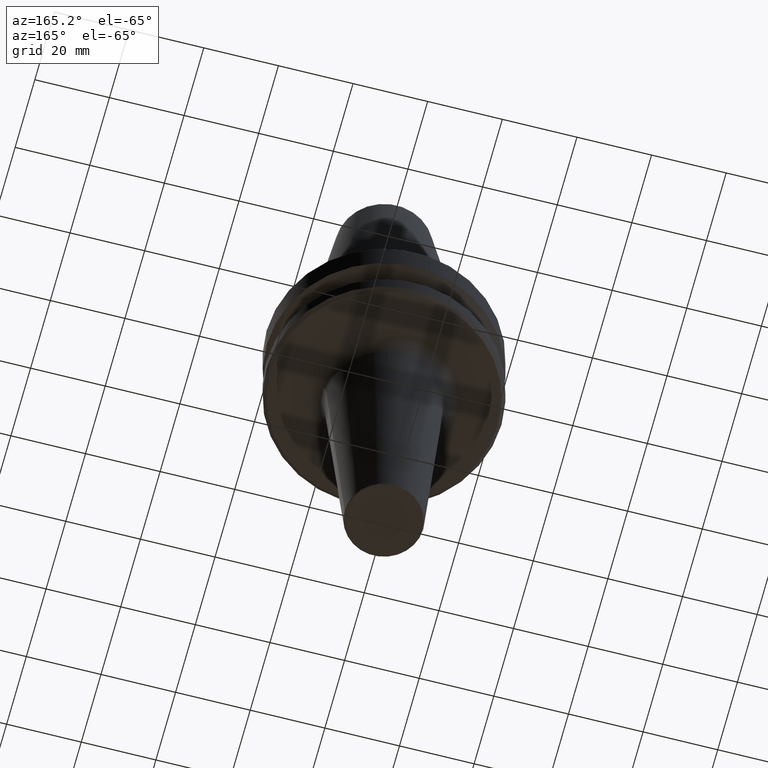
[diagram: clean part render]
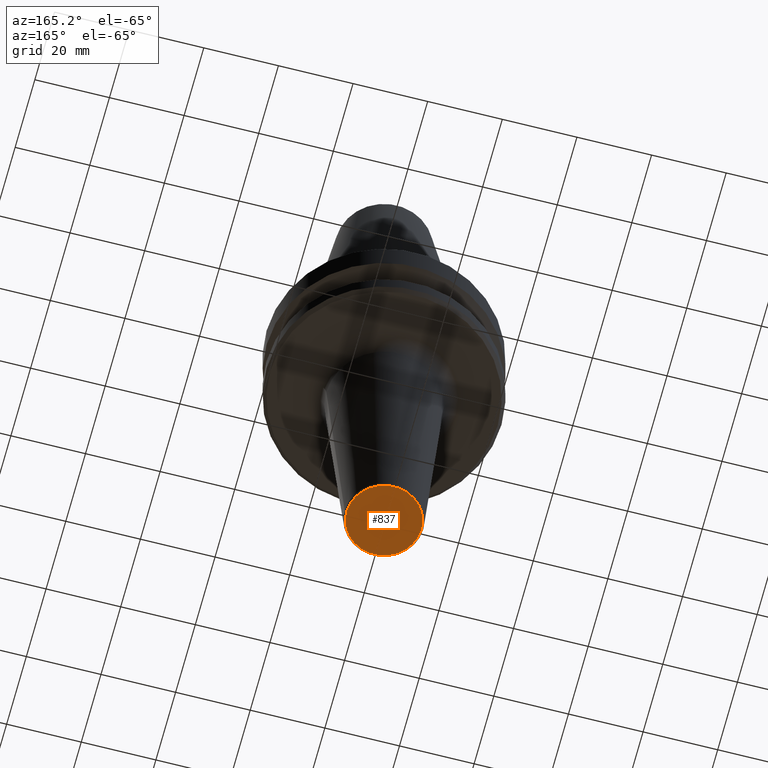
[diagram: same view with one face highlighted and labeled with its STEP entity id]
A machine part, auxiliary view. The second image highlights one B-rep face of the part: STEP entity #837.
In plain terms, the highlighted planar face has unit normal (0, 0, -1).
Its self-contained STEP definition (entity closure, byte-faithful):
#11 = EDGE_CURVE ( 'NONE', #379, #521, #798, .T. ) ;
#228 = DIRECTION ( 'NONE',  ( 1.000000000000000000, 0.0000000000000000000, 0.0000000000000000000 ) ) ;
#231 = CARTESIAN_POINT ( 'NONE',  ( 0.0000000000000000000, 0.0000000000000000000, -167.4000000000080200 ) ) ;
#315 = DIRECTION ( 'NONE',  ( 1.000000000000000000, 0.0000000000000000000, 0.0000000000000000000 ) ) ;
#326 = CIRCLE ( 'NONE', #872, 10.03427325516696900 ) ;
#368 = EDGE_LOOP ( 'NONE', ( #970, #717 ) ) ;
#379 = VERTEX_POINT ( 'NONE', #535 ) ;
#403 = PLANE ( 'NONE',  #405 ) ;
#405 = AXIS2_PLACEMENT_3D ( 'NONE', #473, #1044, #557 ) ;
#473 = CARTESIAN_POINT ( 'NONE',  ( 0.0000000000000000000, 0.0000000000000000000, -167.4000000000080200 ) ) ;
#521 = VERTEX_POINT ( 'NONE', #685 ) ;
#535 = CARTESIAN_POINT ( 'NONE',  ( 10.03427325516696900, 0.0000000000000000000, -167.4000000000080200 ) ) ;
#557 = DIRECTION ( 'NONE',  ( -1.000000000000000000, 0.0000000000000000000, -0.0000000000000000000 ) ) ;
#651 = AXIS2_PLACEMENT_3D ( 'NONE', #927, #668, #228 ) ;
#668 = DIRECTION ( 'NONE',  ( -0.0000000000000000000, -0.0000000000000000000, 1.000000000000000000 ) ) ;
#685 = CARTESIAN_POINT ( 'NONE',  ( -10.03427325516696900, 1.259383206518740800E-015, -167.4000000000080200 ) ) ;
#717 = ORIENTED_EDGE ( 'NONE', *, *, #767, .F. ) ;
#767 = EDGE_CURVE ( 'NONE', #521, #379, #326, .T. ) ;
#786 = DIRECTION ( 'NONE',  ( -0.0000000000000000000, -0.0000000000000000000, 1.000000000000000000 ) ) ;
#798 = CIRCLE ( 'NONE', #651, 10.03427325516696900 ) ;
#837 = ADVANCED_FACE ( 'NONE', ( #1048 ), #403, .T. ) ;
#872 = AXIS2_PLACEMENT_3D ( 'NONE', #231, #786, #315 ) ;
#927 = CARTESIAN_POINT ( 'NONE',  ( 0.0000000000000000000, 0.0000000000000000000, -167.4000000000080200 ) ) ;
#970 = ORIENTED_EDGE ( 'NONE', *, *, #11, .F. ) ;
#1044 = DIRECTION ( 'NONE',  ( 0.0000000000000000000, 0.0000000000000000000, -1.000000000000000000 ) ) ;
#1048 = FACE_OUTER_BOUND ( 'NONE', #368, .T. ) ;